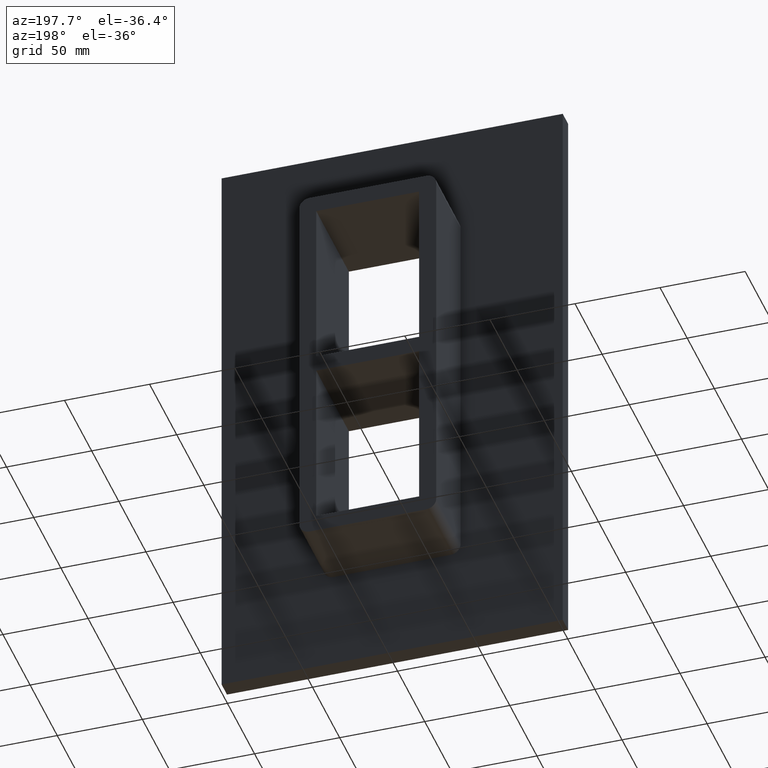
[diagram: clean part render]
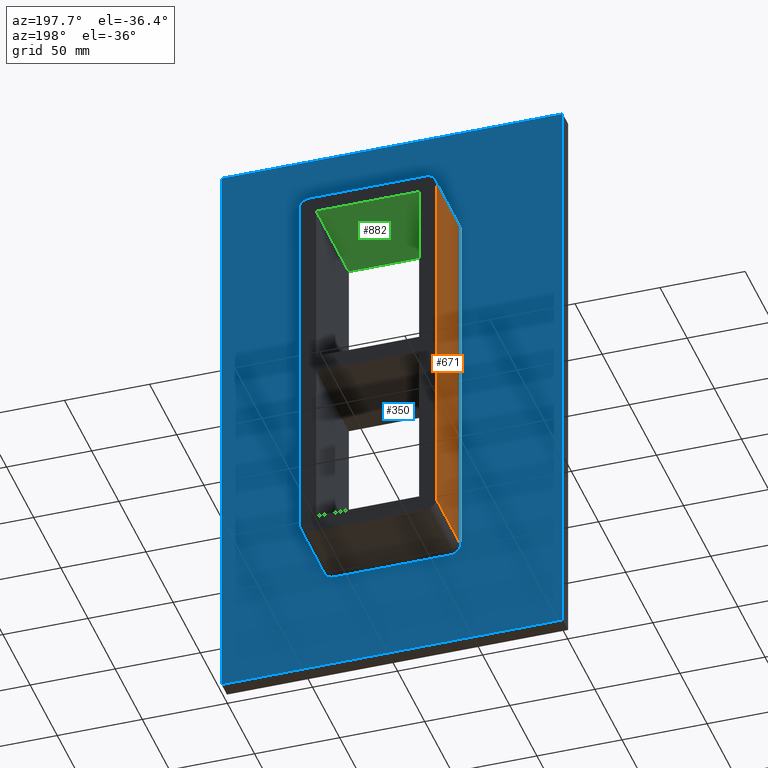
[diagram: same view with three faces highlighted in distinct colors, each labeled with its STEP entity id]
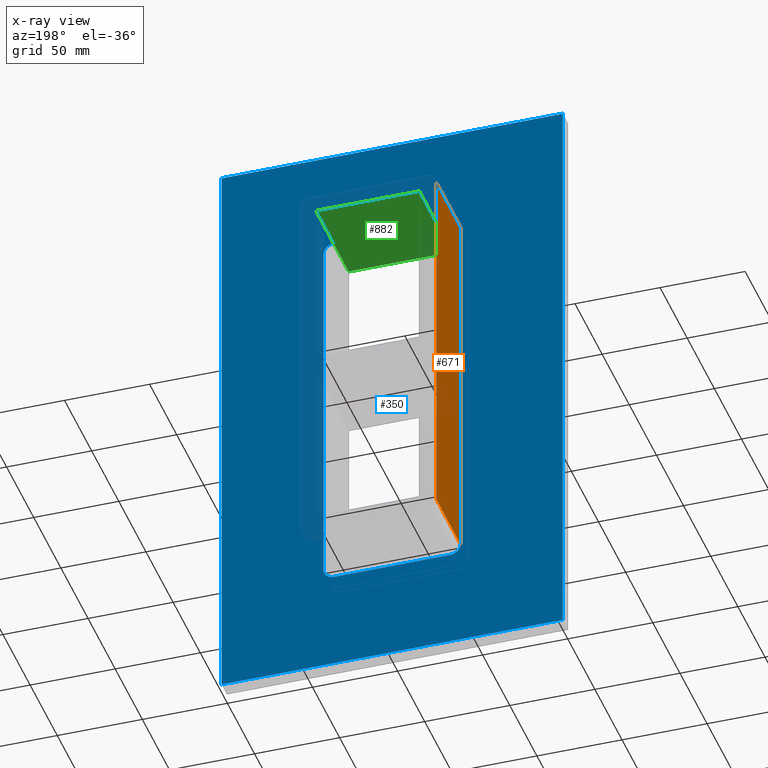
[diagram: x-ray of the same camera — body ghosted, the three highlighted faces saturated]
A machine part, auxiliary view with three faces highlighted in distinct colors.
The next image is the same camera in x-ray (body ghosted, the three faces saturated) — at least one of them is partly hidden behind the body in this view.
Their STEP definitions:

[orange] entity #671 — the highlighted planar face has unit normal (-1, 0, 0).
#299=CARTESIAN_POINT('',(-40.249999999999986,10.0,110.00000000000003));
#300=VERTEX_POINT('',#299);
#308=CARTESIAN_POINT('',(-40.249999999999986,10.0,-110.0));
#309=VERTEX_POINT('',#308);
#310=CARTESIAN_POINT('',(-40.249999999999986,10.0,-110.0));
#311=DIRECTION('',(0.0,0.0,1.0));
#312=VECTOR('',#311,220.00000000000003);
#313=LINE('',#310,#312);
#314=EDGE_CURVE('',#309,#300,#313,.T.);
#598=CARTESIAN_POINT('',(-40.249999999999986,55.0,-110.0));
#599=VERTEX_POINT('',#598);
#600=CARTESIAN_POINT('',(-40.249999999999986,10.0,-110.0));
#601=DIRECTION('',(0.0,1.0,0.0));
#602=VECTOR('',#601,45.0);
#603=LINE('',#600,#602);
#604=EDGE_CURVE('',#309,#599,#603,.T.);
#648=CARTESIAN_POINT('',(-40.249999999999986,0.0,-110.0));
#649=DIRECTION('',(-1.0,0.0,0.0));
#650=DIRECTION('',(0.0,0.0,1.0));
#651=AXIS2_PLACEMENT_3D('',#648,#649,#650);
#652=PLANE('',#651);
#653=ORIENTED_EDGE('',*,*,#314,.T.);
#654=CARTESIAN_POINT('',(-40.249999999999986,55.0,110.00000000000003));
#655=VERTEX_POINT('',#654);
#656=CARTESIAN_POINT('',(-40.249999999999986,10.0,110.00000000000003));
#657=DIRECTION('',(0.0,1.0,0.0));
#658=VECTOR('',#657,45.0);
#659=LINE('',#656,#658);
#660=EDGE_CURVE('',#300,#655,#659,.T.);
#661=ORIENTED_EDGE('',*,*,#660,.T.);
#662=CARTESIAN_POINT('',(-40.249999999999986,55.0,-110.0));
#663=DIRECTION('',(0.0,0.0,1.0));
#664=VECTOR('',#663,220.00000000000003);
#665=LINE('',#662,#664);
#666=EDGE_CURVE('',#599,#655,#665,.T.);
#667=ORIENTED_EDGE('',*,*,#666,.F.);
#668=ORIENTED_EDGE('',*,*,#604,.F.);
#669=EDGE_LOOP('',(#653,#661,#667,#668));
#670=FACE_OUTER_BOUND('',#669,.T.);
#671=ADVANCED_FACE('',(#670),#652,.T.);

[blue] entity #350 — the highlighted planar face has unit normal (0, 1, 0).
#241=CARTESIAN_POINT('',(-7.716301E-015,10.0,0.0));
#242=DIRECTION('',(0.0,1.0,0.0));
#243=DIRECTION('',(0.0,0.0,1.0));
#244=AXIS2_PLACEMENT_3D('',#241,#242,#243);
#245=PLANE('',#244);
#246=CARTESIAN_POINT('',(100.24999999999999,10.0,-176.0));
#247=VERTEX_POINT('',#246);
#248=CARTESIAN_POINT('',(-100.24999999999999,10.0,-176.0));
#249=VERTEX_POINT('',#248);
#250=CARTESIAN_POINT('',(100.24999999999999,10.0,-176.0));
#251=DIRECTION('',(-1.0,0.0,0.0));
#252=VECTOR('',#251,200.49999999999997);
#253=LINE('',#250,#252);
#254=EDGE_CURVE('',#247,#249,#253,.T.);
#255=ORIENTED_EDGE('',*,*,#254,.T.);
#256=CARTESIAN_POINT('',(-100.24999999999999,10.0,176.0));
#257=VERTEX_POINT('',#256);
#258=CARTESIAN_POINT('',(-100.25,10.0,-176.0));
#259=DIRECTION('',(0.0,0.0,1.0));
#260=VECTOR('',#259,352.0);
#261=LINE('',#258,#260);
#262=EDGE_CURVE('',#249,#257,#261,.T.);
#263=ORIENTED_EDGE('',*,*,#262,.T.);
#264=CARTESIAN_POINT('',(100.24999999999999,10.0,176.0));
#265=VERTEX_POINT('',#264);
#266=CARTESIAN_POINT('',(-100.25,10.0,176.0));
#267=DIRECTION('',(1.0,0.0,0.0));
#268=VECTOR('',#267,200.49999999999997);
#269=LINE('',#266,#268);
#270=EDGE_CURVE('',#257,#265,#269,.T.);
#271=ORIENTED_EDGE('',*,*,#270,.T.);
#272=CARTESIAN_POINT('',(100.24999999999999,10.0,176.0));
#273=DIRECTION('',(0.0,0.0,-1.0));
#274=VECTOR('',#273,352.0);
#275=LINE('',#272,#274);
#276=EDGE_CURVE('',#265,#247,#275,.T.);
#277=ORIENTED_EDGE('',*,*,#276,.T.);
#278=EDGE_LOOP('',(#255,#263,#271,#277));
#279=FACE_OUTER_BOUND('',#278,.T.);
#280=CARTESIAN_POINT('',(34.250000000000028,10.0,116.00000000000001));
#281=VERTEX_POINT('',#280);
#282=CARTESIAN_POINT('',(40.249999999999986,10.0,110.00000000000003));
#283=VERTEX_POINT('',#282);
#284=CARTESIAN_POINT('',(34.250000000000007,10.0,110.00000000000003));
#285=DIRECTION('',(0.0,1.0,0.0));
#286=DIRECTION('',(0.0,0.0,1.0));
#287=AXIS2_PLACEMENT_3D('',#284,#285,#286);
#288=CIRCLE('',#287,6.000000000000014);
#289=EDGE_CURVE('',#281,#283,#288,.T.);
#290=ORIENTED_EDGE('',*,*,#289,.F.);
#291=CARTESIAN_POINT('',(-34.250000000000028,10.0,116.00000000000001));
#292=VERTEX_POINT('',#291);
#293=CARTESIAN_POINT('',(-34.250000000000028,10.0,116.00000000000001));
#294=DIRECTION('',(1.0,0.0,0.0));
#295=VECTOR('',#294,68.500000000000057);
#296=LINE('',#293,#295);
#297=EDGE_CURVE('',#292,#281,#296,.T.);
#298=ORIENTED_EDGE('',*,*,#297,.F.);
#299=CARTESIAN_POINT('',(-40.249999999999986,10.0,110.00000000000003));
#300=VERTEX_POINT('',#299);
#301=CARTESIAN_POINT('',(-34.250000000000007,10.0,110.00000000000003));
#302=DIRECTION('',(0.0,1.0,0.0));
#303=DIRECTION('',(-1.0,0.0,0.0));
#304=AXIS2_PLACEMENT_3D('',#301,#302,#303);
#305=CIRCLE('',#304,6.000000000000014);
#306=EDGE_CURVE('',#300,#292,#305,.T.);
#307=ORIENTED_EDGE('',*,*,#306,.F.);
#308=CARTESIAN_POINT('',(-40.249999999999986,10.0,-110.0));
#309=VERTEX_POINT('',#308);
#310=CARTESIAN_POINT('',(-40.249999999999986,10.0,-110.0));
#311=DIRECTION('',(0.0,0.0,1.0));
#312=VECTOR('',#311,220.00000000000003);
#313=LINE('',#310,#312);
#314=EDGE_CURVE('',#309,#300,#313,.T.);
#315=ORIENTED_EDGE('',*,*,#314,.F.);
#316=CARTESIAN_POINT('',(-34.250000000000028,10.0,-116.00000000000001));
#317=VERTEX_POINT('',#316);
#318=CARTESIAN_POINT('',(-34.250000000000007,10.0,-110.00000000000003));
#319=DIRECTION('',(0.0,1.0,0.0));
#320=DIRECTION('',(0.0,0.0,-1.0));
#321=AXIS2_PLACEMENT_3D('',#318,#319,#320);
#322=CIRCLE('',#321,6.000000000000014);
#323=EDGE_CURVE('',#317,#309,#322,.T.);
#324=ORIENTED_EDGE('',*,*,#323,.F.);
#325=CARTESIAN_POINT('',(34.250000000000007,10.0,-116.00000000000001));
#326=VERTEX_POINT('',#325);
#327=CARTESIAN_POINT('',(34.250000000000007,10.0,-116.00000000000001));
#328=DIRECTION('',(-1.0,0.0,0.0));
#329=VECTOR('',#328,68.500000000000028);
#330=LINE('',#327,#329);
#331=EDGE_CURVE('',#326,#317,#330,.T.);
#332=ORIENTED_EDGE('',*,*,#331,.F.);
#333=CARTESIAN_POINT('',(40.249999999999986,10.0,-110.0));
#334=VERTEX_POINT('',#333);
#335=CARTESIAN_POINT('',(34.250000000000007,10.0,-110.00000000000003));
#336=DIRECTION('',(0.0,1.0,0.0));
#337=DIRECTION('',(1.0,0.0,0.0));
#338=AXIS2_PLACEMENT_3D('',#335,#336,#337);
#339=CIRCLE('',#338,6.000000000000014);
#340=EDGE_CURVE('',#334,#326,#339,.T.);
#341=ORIENTED_EDGE('',*,*,#340,.F.);
#342=CARTESIAN_POINT('',(40.249999999999986,10.0,110.00000000000003));
#343=DIRECTION('',(0.0,0.0,-1.0));
#344=VECTOR('',#343,220.0);
#345=LINE('',#342,#344);
#346=EDGE_CURVE('',#283,#334,#345,.T.);
#347=ORIENTED_EDGE('',*,*,#346,.F.);
#348=EDGE_LOOP('',(#290,#298,#307,#315,#324,#332,#341,#347));
#349=FACE_BOUND('',#348,.T.);
#350=ADVANCED_FACE('',(#279,#349),#245,.T.);

[green] entity #882 — the highlighted planar face has unit normal (0, 0, 1).
#154=CARTESIAN_POINT('',(-30.250000000000004,55.0,106.00000000000001));
#155=VERTEX_POINT('',#154);
#162=CARTESIAN_POINT('',(-30.250000000000004,-5.0,106.00000000000001));
#163=VERTEX_POINT('',#162);
#164=CARTESIAN_POINT('',(-30.250000000000004,-5.0,106.00000000000001));
#165=DIRECTION('',(0.0,1.0,0.0));
#166=VECTOR('',#165,60.0);
#167=LINE('',#164,#166);
#168=EDGE_CURVE('',#163,#155,#167,.T.);
#216=CARTESIAN_POINT('',(30.249999999999986,-5.0,106.00000000000001));
#217=VERTEX_POINT('',#216);
#224=CARTESIAN_POINT('',(30.249999999999986,55.0,106.00000000000001));
#225=VERTEX_POINT('',#224);
#226=CARTESIAN_POINT('',(30.249999999999986,-5.0,106.00000000000001));
#227=DIRECTION('',(0.0,1.0,0.0));
#228=VECTOR('',#227,60.0);
#229=LINE('',#226,#228);
#230=EDGE_CURVE('',#217,#225,#229,.T.);
#861=CARTESIAN_POINT('',(-30.250000000000004,0.0,106.00000000000001));
#862=DIRECTION('',(0.0,0.0,1.0));
#863=DIRECTION('',(1.0,0.0,0.0));
#864=AXIS2_PLACEMENT_3D('',#861,#862,#863);
#865=PLANE('',#864);
#866=ORIENTED_EDGE('',*,*,#168,.T.);
#867=CARTESIAN_POINT('',(30.249999999999986,55.0,106.00000000000001));
#868=DIRECTION('',(-1.0,0.0,0.0));
#869=VECTOR('',#868,60.499999999999986);
#870=LINE('',#867,#869);
#871=EDGE_CURVE('',#225,#155,#870,.T.);
#872=ORIENTED_EDGE('',*,*,#871,.F.);
#873=ORIENTED_EDGE('',*,*,#230,.F.);
#874=CARTESIAN_POINT('',(-30.250000000000004,-5.0,106.00000000000001));
#875=DIRECTION('',(1.0,0.0,0.0));
#876=VECTOR('',#875,60.499999999999986);
#877=LINE('',#874,#876);
#878=EDGE_CURVE('',#163,#217,#877,.T.);
#879=ORIENTED_EDGE('',*,*,#878,.F.);
#880=EDGE_LOOP('',(#866,#872,#873,#879));
#881=FACE_OUTER_BOUND('',#880,.T.);
#882=ADVANCED_FACE('',(#881),#865,.F.);